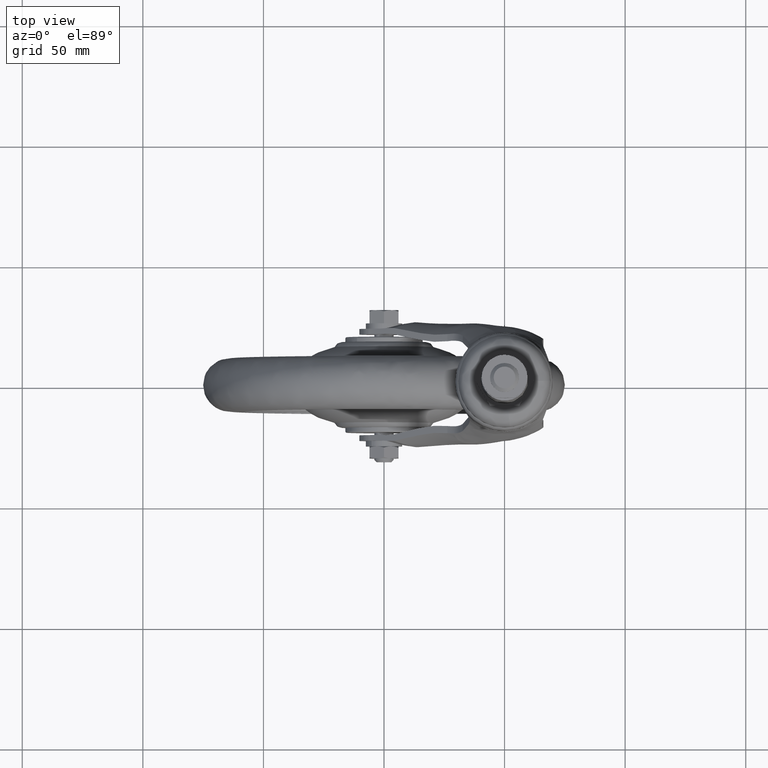
[diagram: clean part render]
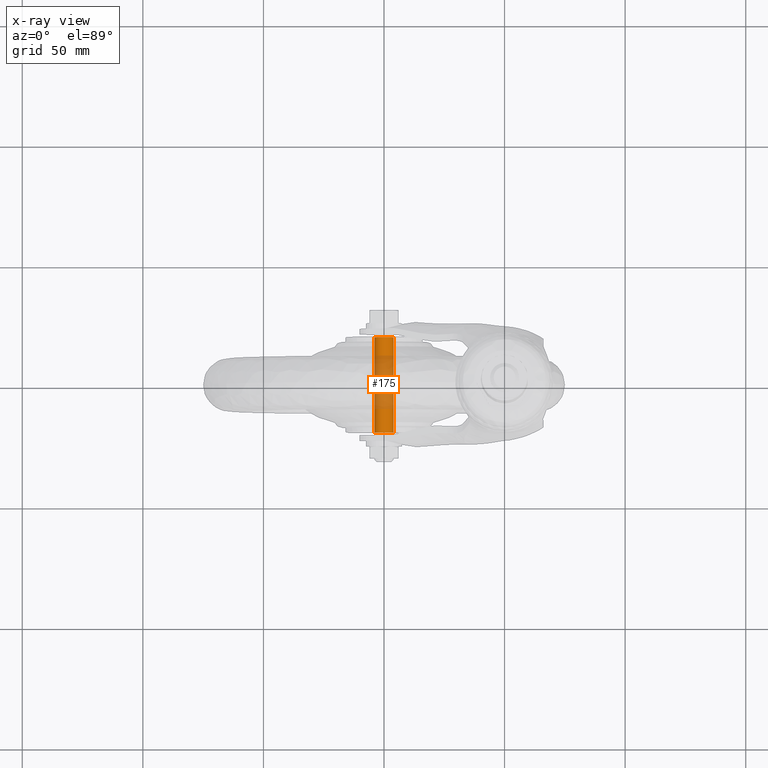
[diagram: x-ray — body ghosted, one internal face saturated and labeled with its STEP entity id]
A machine part, top view, then the same camera in x-ray: the body is ghosted and one INTERNAL B-rep face — a face not visible from any outside direction — is saturated and labeled: STEP entity #175.
In plain terms, the highlighted face is a freeform B-spline surface patch.
Its self-contained STEP definition (entity closure, byte-faithful):
#44=CARTESIAN_POINT('',(2.853001796616725,20.790113000000058,-2.803637057199403));
#45=CARTESIAN_POINT('',(5.656638853816128,20.790113000000058,0.049364739417323));
#46=CARTESIAN_POINT('',(2.803637057199403,20.790113000000051,2.853001796616725));
#47=CARTESIAN_POINT('',(-0.049364739417323,20.790113000000058,5.656638853816128));
#48=CARTESIAN_POINT('',(-2.853001796616725,20.790113000000058,2.803637057199403));
#49=CARTESIAN_POINT('',(-5.656638853816128,20.790113000000058,-0.049364739417323));
#50=CARTESIAN_POINT('',(-2.803637057199403,20.790113000000058,-2.853001796616725));
#51=CARTESIAN_POINT('',(2.853001796616725,-20.814637000000001,-2.803637057199403));
#52=CARTESIAN_POINT('',(5.656638853816128,-20.814637000000005,0.049364739417323));
#53=CARTESIAN_POINT('',(2.803637057199403,-20.814637000000008,2.853001796616725));
#54=CARTESIAN_POINT('',(-0.049364739417323,-20.814637000000005,5.656638853816128));
#55=CARTESIAN_POINT('',(-2.853001796616725,-20.814637000000001,2.803637057199403));
#56=CARTESIAN_POINT('',(-5.656638853816128,-20.814637000000005,-0.049364739417323));
#57=CARTESIAN_POINT('',(-2.803637057199403,-20.814637000000001,-2.853001796616725));
#65=(BOUNDED_SURFACE()B_SPLINE_SURFACE(2,1,((#44,#51),(#45,#52),(#46,#53),(#47,#54),(#48,#55),(#49,#56),(#50,#57)),.UNSPECIFIED.,.F.,.F.,.U.)B_SPLINE_SURFACE_WITH_KNOTS((3,2,2,3),(2,2),(0.0,6.627416997969519,13.254833995939039,19.882250993908560),(0.0,41.604750000000067),.UNSPECIFIED.)GEOMETRIC_REPRESENTATION_ITEM()RATIONAL_B_SPLINE_SURFACE(((1.0,1.0),(0.707106781186548,0.707106781186548),(1.0,1.0),(0.707106781186548,0.707106781186548),(1.0,1.0),(0.707106781186548,0.707106781186548),(1.0,1.0)))REPRESENTATION_ITEM('')SURFACE());
#66=CARTESIAN_POINT('',(3.999999999985265,19.800113000000049,-0.000010857302318));
#67=VERTEX_POINT('',#66);
#68=CARTESIAN_POINT('',(2.853003979385706,19.800112999991679,-2.803638707982547));
#69=VERTEX_POINT('',#68);
#70=CARTESIAN_POINT('',(3.999999999985265,19.800113000000049,-0.000010857302318));
#71=CARTESIAN_POINT('',(4.000037003136709,19.800112999999211,-0.291263748854267));
#72=CARTESIAN_POINT('',(3.932579371922067,19.800112999997310,-0.906108886539015));
#73=CARTESIAN_POINT('',(3.584954893194571,19.800112999994472,-1.889689847042311));
#74=CARTESIAN_POINT('',(3.148055116535058,19.800112999992539,-2.503714525413769));
#75=CARTESIAN_POINT('',(2.853003979385706,19.800112999991679,-2.803638707982547));
#76=B_SPLINE_CURVE_WITH_KNOTS('',3,(#70,#71,#72,#73,#74,#75),.UNSPECIFIED.,.F.,.U.,(4,1,1,4),(0.000000127672630,0.873777917755557,1.844610825056763,3.106752147877324),.UNSPECIFIED.);
#77=EDGE_CURVE('',#67,#69,#76,.T.);
#78=ORIENTED_EDGE('',*,*,#77,.T.);
#79=CARTESIAN_POINT('',(2.853000138025327,-19.799887000000009,-2.803634873003553));
#80=VERTEX_POINT('',#79);
#81=CARTESIAN_POINT('',(2.853003979385706,19.800112999991679,-2.803638707982547));
#82=CARTESIAN_POINT('',(2.853000138025327,-19.799887000000009,-2.803634873003553));
#83=QUASI_UNIFORM_CURVE('',1,(#81,#82),.UNSPECIFIED.,.F.,.U.);
#84=EDGE_CURVE('',#69,#80,#83,.T.);
#85=ORIENTED_EDGE('',*,*,#84,.T.);
#86=CARTESIAN_POINT('',(3.999999999985265,-19.799886999999998,0.000010857302318));
#87=VERTEX_POINT('',#86);
#88=CARTESIAN_POINT('',(2.853000138025327,-19.799887000000009,-2.803634873003553));
#89=CARTESIAN_POINT('',(3.193523668945091,-19.799887000000030,-2.457606006779066));
#90=CARTESIAN_POINT('',(3.782740685265658,-19.799886999999909,-1.585196085358583));
#91=CARTESIAN_POINT('',(4.000689596170822,-19.799887000000059,-0.550215862788419));
#92=CARTESIAN_POINT('',(3.999999999985265,-19.799886999999998,0.000010857302318));
#93=B_SPLINE_CURVE_WITH_KNOTS('',3,(#88,#89,#90,#91,#92),.UNSPECIFIED.,.F.,.U.,(4,1,4),(0.000000127676897,1.456333222193530,3.106771713351482),.UNSPECIFIED.);
#94=EDGE_CURVE('',#80,#87,#93,.T.);
#95=ORIENTED_EDGE('',*,*,#94,.T.);
#96=CARTESIAN_POINT('',(0.0,-19.799886999999998,4.0));
#97=VERTEX_POINT('',#96);
#98=CARTESIAN_POINT('',(3.999999999985265,-19.799886999999998,0.000010857302318));
#99=CARTESIAN_POINT('',(4.000207655236221,-19.799887000000030,0.425459457532673));
#100=CARTESIAN_POINT('',(3.884003298766003,-19.799886999999998,1.145230514720791));
#101=CARTESIAN_POINT('',(3.376915517185260,-19.799887000000009,2.253023232760946));
#102=CARTESIAN_POINT('',(2.561277864990574,-19.799887000000030,3.175551545353323));
#103=CARTESIAN_POINT('',(1.341549541707922,-19.799886999999860,3.846547288522265));
#104=CARTESIAN_POINT('',(0.458184030150848,-19.799887000000279,4.000300298895244));
#105=CARTESIAN_POINT('',(0.0,-19.799886999999998,4.0));
#106=B_SPLINE_CURVE_WITH_KNOTS('',3,(#98,#99,#100,#101,#102,#103,#104,#105),.UNSPECIFIED.,.F.,.U.,(4,1,1,1,1,4),(0.000000422865790,1.276302679671629,2.159906418189505,3.632544478629282,4.908859664546196,6.283336857857560),.UNSPECIFIED.);
#107=EDGE_CURVE('',#87,#97,#106,.T.);
#108=ORIENTED_EDGE('',*,*,#107,.T.);
#109=CARTESIAN_POINT('',(-3.999999999985265,-19.799886999999998,-0.000010857302317));
#110=VERTEX_POINT('',#109);
#111=CARTESIAN_POINT('',(0.0,-19.799886999999998,4.0));
#112=CARTESIAN_POINT('',(-0.589212216718692,-19.799886999999949,4.000904259215983));
#113=CARTESIAN_POINT('',(-1.602845743818865,-19.799887000000091,3.771630370486197));
#114=CARTESIAN_POINT('',(-2.832825392589261,-19.799886999999970,2.927900121020207));
#115=CARTESIAN_POINT('',(-3.564705892504180,-19.799886999999920,1.940842221494975));
#116=CARTESIAN_POINT('',(-3.931041074487601,-19.799887000000179,0.916269456234585));
#117=CARTESIAN_POINT('',(-4.000041502587186,-19.799886999999789,0.294508963817001));
#118=CARTESIAN_POINT('',(-3.999999999985265,-19.799886999999998,-0.000010857302317));
#119=B_SPLINE_CURVE_WITH_KNOTS('',3,(#111,#112,#113,#114,#115,#116,#117,#118),.UNSPECIFIED.,.F.,.U.,(4,1,1,1,1,4),(0.000000408006779,1.767196327624667,3.043552092920193,4.417969459234524,5.399766942490788,6.283349096873114),.UNSPECIFIED.);
#120=EDGE_CURVE('',#97,#110,#119,.T.);
#121=ORIENTED_EDGE('',*,*,#120,.T.);
#122=CARTESIAN_POINT('',(-2.803638711215589,-19.799886999999998,-2.853003976208966));
#123=VERTEX_POINT('',#122);
#124=CARTESIAN_POINT('',(-3.999999999985265,-19.799886999999998,-0.000010857302317));
#125=CARTESIAN_POINT('',(-4.000455737387604,-19.799887000000030,-0.496405965363560));
#126=CARTESIAN_POINT('',(-3.800194229178441,-19.799886999999931,-1.554848408013539));
#127=CARTESIAN_POINT('',(-3.205512891244709,-19.799887000000041,-2.459224683985342));
#128=CARTESIAN_POINT('',(-2.803638711215589,-19.799886999999998,-2.853003976208966));
#129=B_SPLINE_CURVE_WITH_KNOTS('',3,(#124,#125,#126,#127,#128),.UNSPECIFIED.,.F.,.U.,(4,1,4),(0.000000105799997,1.489042873113957,3.176571297131576),.UNSPECIFIED.);
#130=EDGE_CURVE('',#110,#123,#129,.T.);
#131=ORIENTED_EDGE('',*,*,#130,.T.);
#132=CARTESIAN_POINT('',(-2.803634869792157,19.800113000008761,-2.853000141181517));
#133=VERTEX_POINT('',#132);
#134=CARTESIAN_POINT('',(-2.803634869792157,19.800113000008761,-2.853000141181517));
#135=CARTESIAN_POINT('',(-2.803638711215589,-19.799886999999998,-2.853003976208966));
#136=QUASI_UNIFORM_CURVE('',1,(#134,#135),.UNSPECIFIED.,.F.,.U.);
#137=EDGE_CURVE('',#133,#123,#136,.T.);
#138=ORIENTED_EDGE('',*,*,#137,.F.);
#139=CARTESIAN_POINT('',(-3.999999999985265,19.800113000000049,0.000010857302317));
#140=VERTEX_POINT('',#139);
#141=CARTESIAN_POINT('',(-2.803634869792157,19.800113000008761,-2.853000141181517));
#142=CARTESIAN_POINT('',(-3.157994975461836,19.800113000007681,-2.505386230910834));
#143=CARTESIAN_POINT('',(-3.772679368990753,19.800113000005030,-1.620725217006233));
#144=CARTESIAN_POINT('',(-4.000710482960713,19.800113000001762,-0.562603435108395));
#145=CARTESIAN_POINT('',(-3.999999999985265,19.800113000000049,0.000010857302317));
#146=B_SPLINE_CURVE_WITH_KNOTS('',3,(#141,#142,#143,#144,#145),.UNSPECIFIED.,.F.,.U.,(4,1,4),(0.000000105803337,1.489052067166361,3.176590910061865),.UNSPECIFIED.);
#147=EDGE_CURVE('',#133,#140,#146,.T.);
#148=ORIENTED_EDGE('',*,*,#147,.T.);
#149=CARTESIAN_POINT('',(0.0,19.800113000000049,4.0));
#150=VERTEX_POINT('',#149);
#151=CARTESIAN_POINT('',(-3.999999999985265,19.800113000000049,0.000010857302317));
#152=CARTESIAN_POINT('',(-4.000921453112630,19.800113000000010,0.589269029208793));
#153=CARTESIAN_POINT('',(-3.815965787264250,19.800113000000131,1.406574413879771));
#154=CARTESIAN_POINT('',(-3.236817306214863,19.800113000000010,2.399703692711540));
#155=CARTESIAN_POINT('',(-2.528563509379799,19.800113000000099,3.181882782688879));
#156=CARTESIAN_POINT('',(-1.407118820582228,19.800113000000021,3.835298003365767));
#157=CARTESIAN_POINT('',(-0.458165344250678,19.800113000000060,4.000279436128253));
#158=CARTESIAN_POINT('',(0.0,19.800113000000049,4.0));
#159=B_SPLINE_CURVE_WITH_KNOTS('',3,(#151,#152,#153,#154,#155,#156,#157,#158),.UNSPECIFIED.,.F.,.U.,(4,1,1,1,1,4),(0.000000422866107,1.767192895210061,2.454482363370142,3.436126550584125,4.908859664546204,6.283336857857565),.UNSPECIFIED.);
#160=EDGE_CURVE('',#140,#150,#159,.T.);
#161=ORIENTED_EDGE('',*,*,#160,.T.);
#162=CARTESIAN_POINT('',(0.0,19.800113000000049,4.0));
#163=CARTESIAN_POINT('',(0.425428269965957,19.800113000000032,4.000197726731199));
#164=CARTESIAN_POINT('',(1.308986261357243,19.800113000000099,3.857856428584275));
#165=CARTESIAN_POINT('',(2.333985009066234,19.800113000000021,3.309977619441575));
#166=CARTESIAN_POINT('',(3.119799435330240,19.800113000000049,2.561532916277542));
#167=CARTESIAN_POINT('',(3.786472122216618,19.800113000000120,1.537451917894354));
#168=CARTESIAN_POINT('',(4.000840601839771,19.800112999999971,0.589195253419401));
#169=CARTESIAN_POINT('',(3.999999999985265,19.800113000000049,-0.000010857302318));
#170=B_SPLINE_CURVE_WITH_KNOTS('',3,(#162,#163,#164,#165,#166,#167,#168,#169),.UNSPECIFIED.,.F.,.U.,(4,1,1,1,1,4),(0.000000408005651,1.276305155536894,2.650790877838531,3.436133255388975,4.516154660328137,6.283349096873129),.UNSPECIFIED.);
#171=EDGE_CURVE('',#150,#67,#170,.T.);
#172=ORIENTED_EDGE('',*,*,#171,.T.);
#173=EDGE_LOOP('',(#78,#85,#95,#108,#121,#131,#138,#148,#161,#172));
#174=FACE_OUTER_BOUND('',#173,.T.);
#175=ADVANCED_FACE('',(#174),#65,.F.);